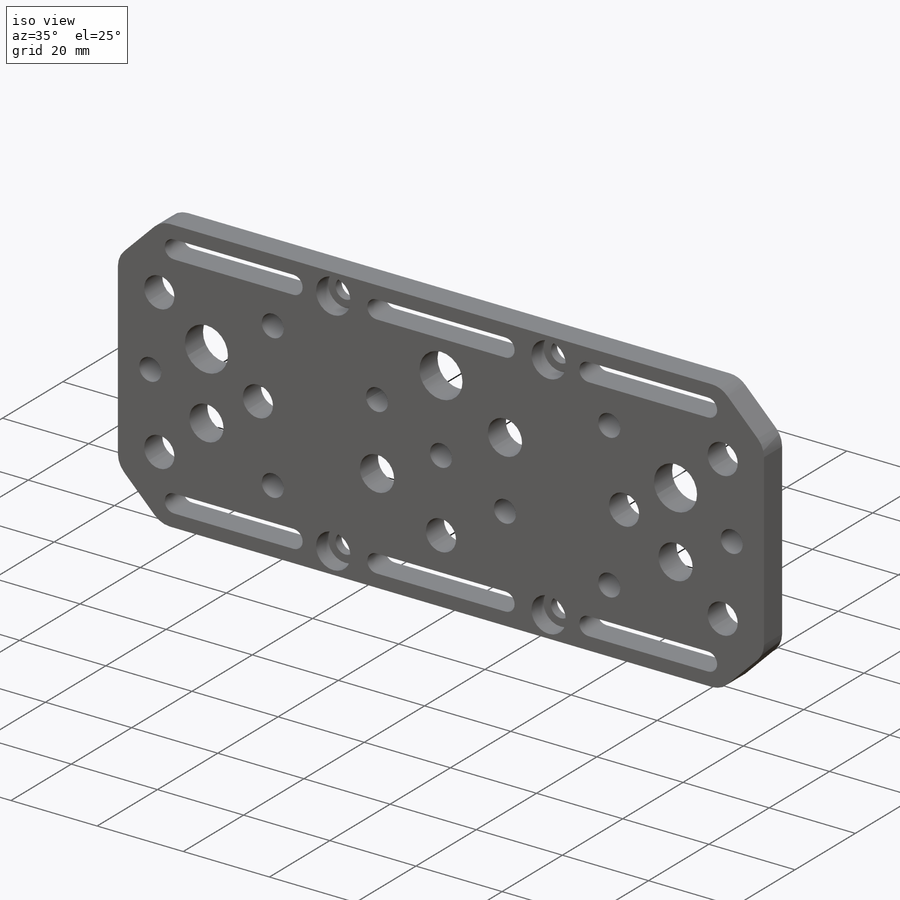
[diagram: iso view]
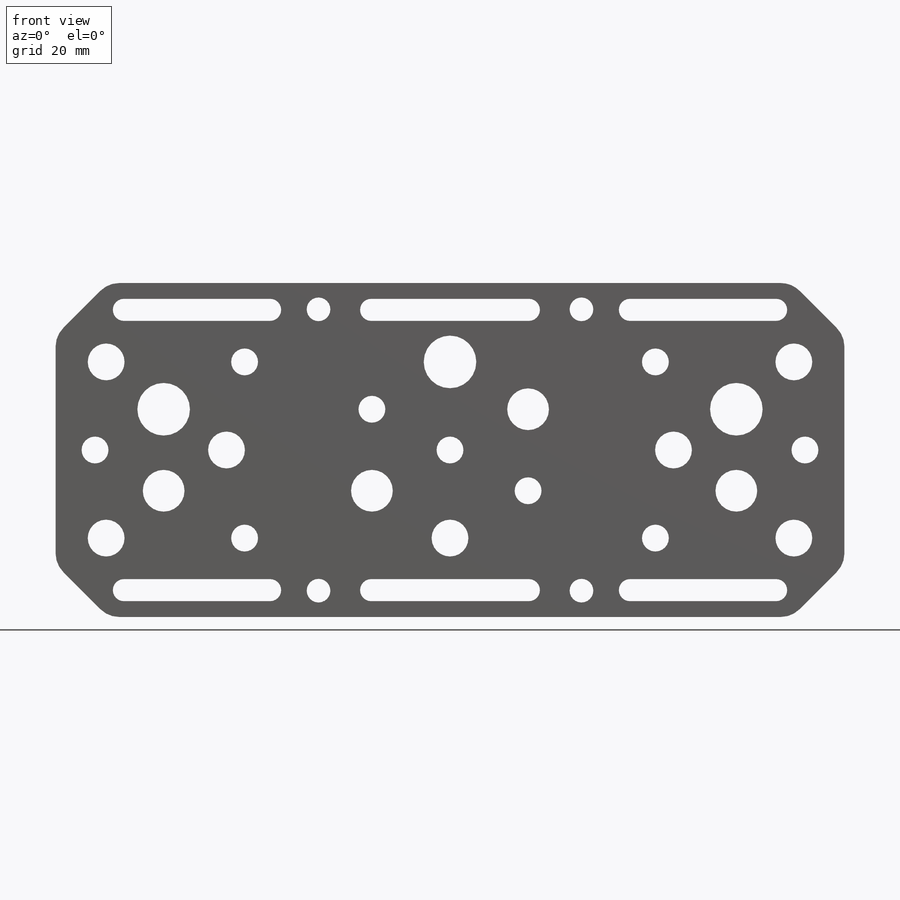
[diagram: front view]
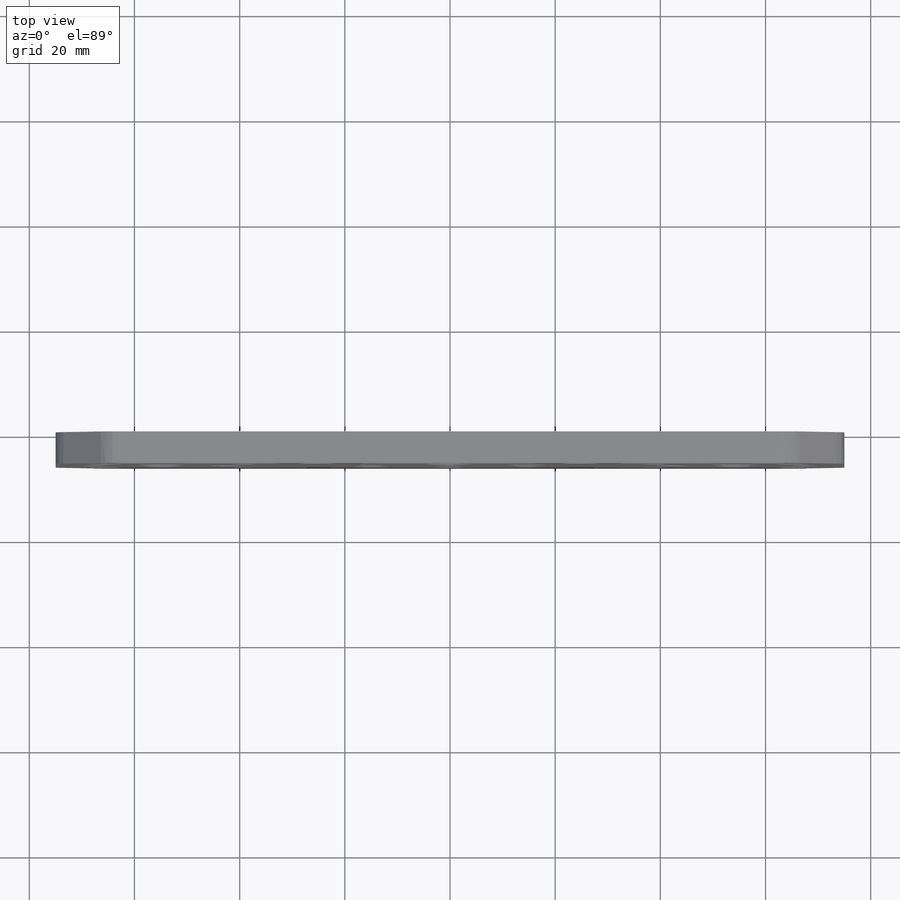
[diagram: top view]
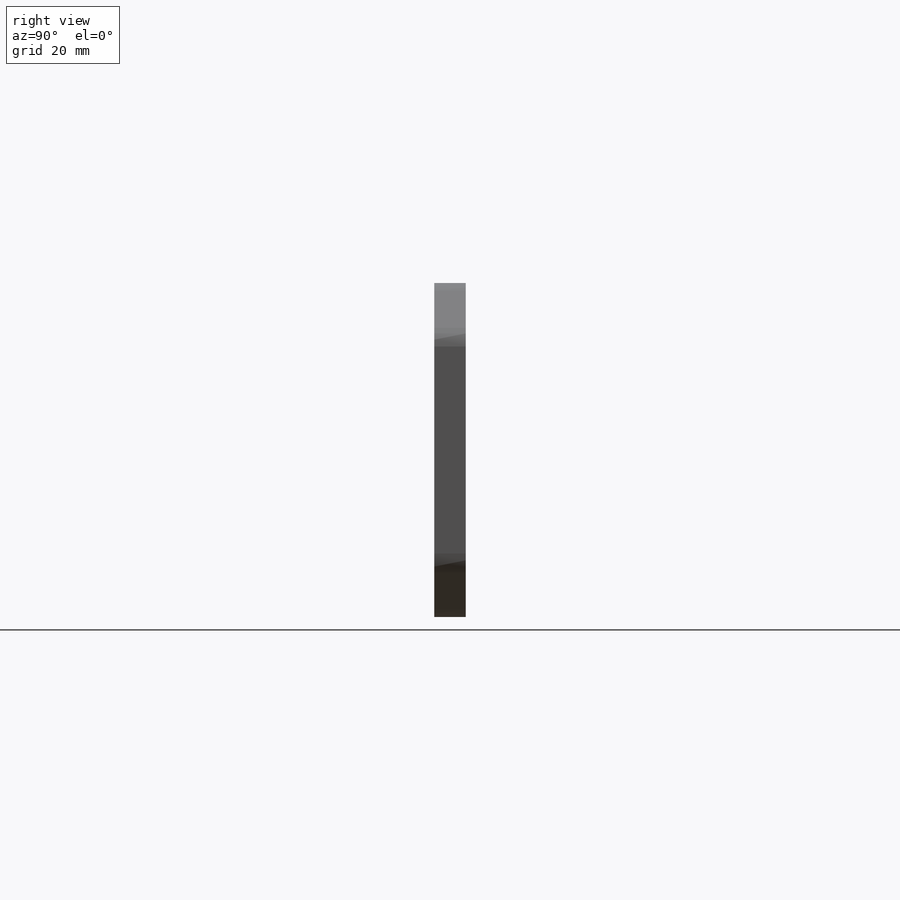
[diagram: right view]
SOLIDWORKS PART (.sldprt)
format: sldprt  version: not decoded by parser v0  size: 814,080 bytes
history: native  units: mm
features: sketch x14, thread x13, hole x5, plane x3, fillet x2, material x1, extrude x1, cut_extrude x1 (+8 scaffold rows collapsed)
feature tree (48):
  scaffold x8  (default folders/planes/origin — collapsed)
  material  "Сплав 2024"
  plane  "Спереди"
  plane  "Сверху"
  plane  "Справа"
  sketch  "Эскиз5"  dims[D1=150.0mm D2=63.5mm]
  extrude  "Бобышка-Вытянуть2"  Depth=6mm
  sketch  "Эскиз6"  dims[D1=50.0mm D2=50.0mm D3=5.0mm D4=5.0mm D5=12.0mm D6=12.0mm D7=15.0mm D8=33.0mm D9=33.0mm D10=15.0mm D11=12.0mm D12=12.0mm]
  hole  "Цековка для винта с внутренним шестигранником M41"  [1 undecoded]
  sketch  "Эскиз8"
  sketch  "Эскиз7"  dims[hole-wizard template sketch: 45 standard entries collapsed; hole parameters above]
  sketch  "Эскиз13"  dims[c1.D1=7.0mm c1.D2=7.0mm c1.D3=7.0mm c1.D4=7.0mm c1.D5=7.0mm c1.D6=7.0mm c2.D2=7.0mm c2.D3=7.0mm c2.D7=7.0mm c2.D8=7.0mm c2.D1=135.0mm c2.D4=110.0mm c2.D5=85.0mm c2.D6=7.0mm c3.D7=7.0mm c3.D8=7.0mm c3.D9=7.0mm c3.D10=7.0mm c3.D11=7.0mm c3.D12=7.0mm c3.D13=7.0mm c3.D14=7.0mm c3.D15=7.0mm c3.D16=2.1mm c4.D7=10.0mm c4.D9=10.0mm c4.D6=2.1mm c4.D11=7.0mm c4.D12=10.0mm c5.D11=7.0mm c5.D12=10.0mm c5.D2=15.0mm c5.D3=20.0mm c5.D17=3.0mm c6.D3=9.0mm c6.D9=30.0mm c6.D12=~3.801515mm]
  cut_extrude  "Вырез-Вытянуть1"  [1 undecoded]
  fillet  "Скругление1"  Radius=5mm
  hole  "Отверстие обработанное метчиком 1/4-202"  [1 undecoded]
  sketch  "Эскиз18"
  sketch  "Эскиз17"  dims[hole-wizard template sketch: 60 standard entries collapsed; hole parameters kept: c18.Глубина проходного сверла=6.0mm]
  thread  "Отверстие резьбы11"  Diameter=6.35mm  [1 undecoded]
  thread  "Отверстие резьбы12"  Diameter=6.35mm  [1 undecoded]
  thread  "Отверстие резьбы13"  Diameter=6.35mm  [1 undecoded]
  thread  "Отверстие резьбы14"  Diameter=6.35mm  [1 undecoded]
  thread  "Отверстие резьбы15"  Diameter=6.35mm  [1 undecoded]
  thread  "Отверстие резьбы16"  Diameter=6.35mm  [1 undecoded]
  hole  "Отверстие обработанное метчиком 3/8-161"  [1 undecoded]
  sketch  "Эскиз20"
  sketch  "Эскиз19"  dims[hole-wizard template sketch: 59 standard entries collapsed; hole parameters kept: c18.Диаметр проходного сверла=7.9375mm c18.Глубина проходного сверла=6.0mm]
  thread  "Отверстие резьбы17"  Diameter=9.525mm  [1 undecoded]
  thread  "Отверстие резьбы18"  Diameter=9.525mm  [1 undecoded]
  hole  "Отверстие обработанное метчиком 1/4-203"  [1 undecoded]
  sketch  "Эскиз22"
  sketch  "Эскиз21"  dims[hole-wizard template sketch: 60 standard entries collapsed; hole parameters kept: c18.Глубина проходного сверла=6.0mm]
  thread  "Отверстие резьбы19"  Diameter=6.35mm  [1 undecoded]
  thread  "Отверстие резьбы20"  Diameter=6.35mm  [1 undecoded]
  thread  "Отверстие резьбы23"  Diameter=6.35mm  [1 undecoded]
  hole  "Отверстие обработанное метчиком 3/8-163"  [1 undecoded]
  sketch  "Эскиз28"
  sketch  "Эскиз27"  dims[hole-wizard template sketch: 59 standard entries collapsed; hole parameters kept: c18.Диаметр проходного сверла=7.9375mm c18.Глубина проходного сверла=6.0mm]
  thread  "Отверстие резьбы25"  Diameter=9.525mm  [1 undecoded]
  thread  "Отверстие резьбы26"  Diameter=9.525mm  [1 undecoded]
  fillet  "Скругление2"  Radius=0.5mm
  sketch  "Эскиз29"
decode coverage: 24 of 36 modeling features carry decoded parameters
note: ~ marks probable driven/reference dimensions
note: 19 parameter values undecoded
summary: no parameter record found for 6 features
note: suppression state not decoded; provenance and decode notes live in map.json
